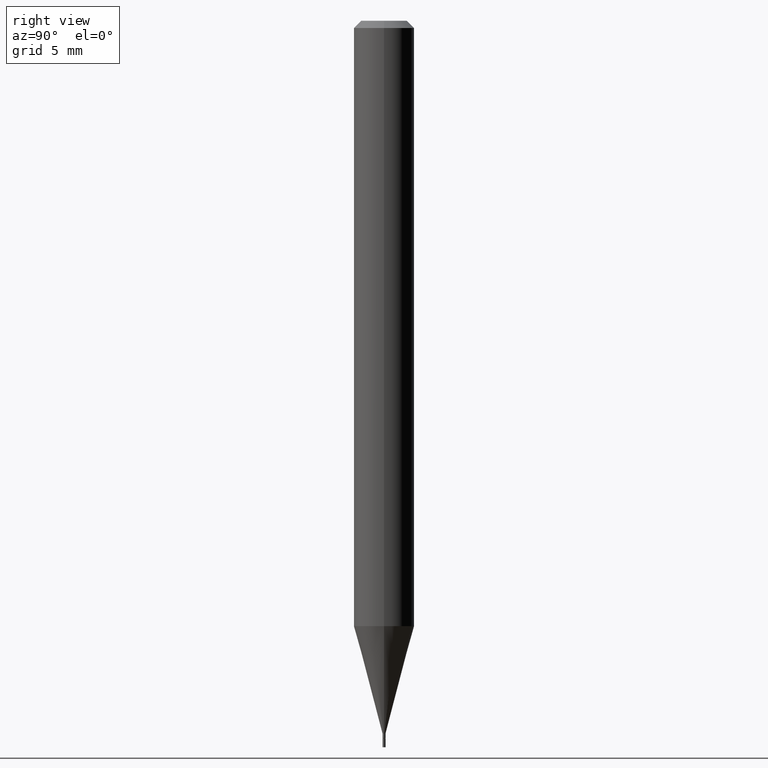
[diagram: clean part render]
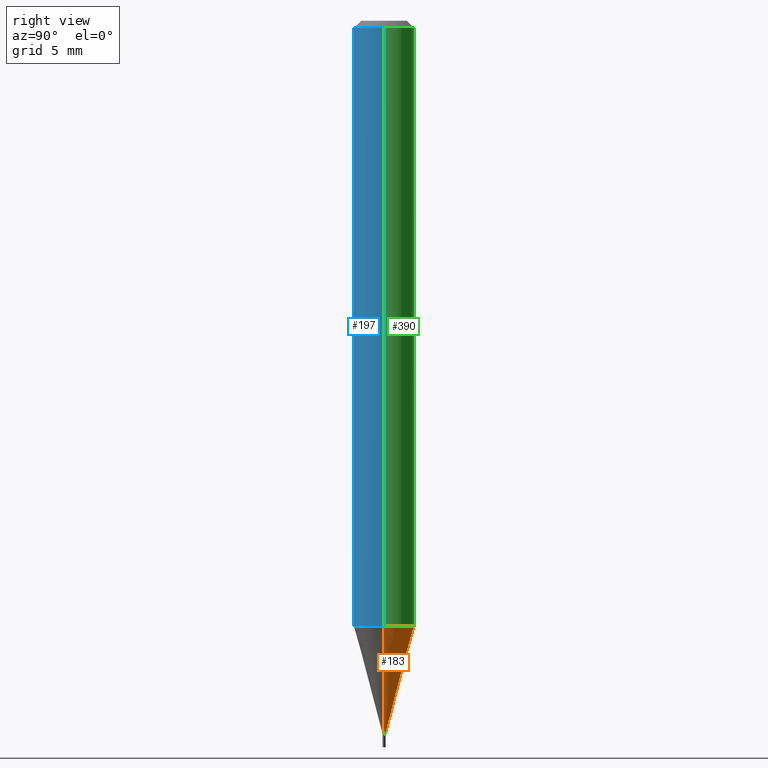
[diagram: same view with three faces highlighted in distinct colors, each labeled with its STEP entity id]
A machine part, right view with three faces highlighted in distinct colors.
Their STEP definitions:

[orange] entity #183 — the highlighted conical surface has half-angle 15 deg.
#30 = FACE_OUTER_BOUND ( 'NONE', #261, .T. ) ;
#50 = CIRCLE ( 'NONE', #101, 0.06250000000000000000 ) ;
#71 = CARTESIAN_POINT ( 'NONE',  ( 0.002999999999999921566, -5.160409418810168864E-15, -1.471999999999999975 ) ) ;
#78 = EDGE_CURVE ( 'NONE', #139, #265, #211, .T. ) ;
#87 = DIRECTION ( 'NONE',  ( -0.2588190451025213501, 5.211531920934551042E-15, 0.9659258262890682012 ) ) ;
#91 = DIRECTION ( 'NONE',  ( -2.445468806185136597E-29, 3.491481338843145583E-15, 1.000000000000000000 ) ) ;
#98 = CARTESIAN_POINT ( 'NONE',  ( 0.06250000000000000000, -4.800587745993150425E-15, -1.249942976949652174 ) ) ;
#99 = DIRECTION ( 'NONE',  ( 0.2588190451025213501, 1.565188264969621968E-15, 0.9659258262890682012 ) ) ;
#101 = AXIS2_PLACEMENT_3D ( 'NONE', #414, #91, #306 ) ;
#107 = EDGE_CURVE ( 'NONE', #278, #123, #200, .T. ) ;
#123 = VERTEX_POINT ( 'NONE', #98 ) ;
#138 = DIRECTION ( 'NONE',  ( 1.000000000000000000, -6.982962677686191769E-15, 0.000000000000000000 ) ) ;
#139 = VERTEX_POINT ( 'NONE', #386 ) ;
#152 = EDGE_CURVE ( 'NONE', #123, #265, #50, .T. ) ;
#165 = DIRECTION ( 'NONE',  ( -2.445468806185136597E-29, 3.491481338843145583E-15, 1.000000000000000000 ) ) ;
#177 = CARTESIAN_POINT ( 'NONE',  ( -0.06250000000000000000, -3.920063368787695350E-15, -1.249942976949652174 ) ) ;
#183 = ADVANCED_FACE ( 'NONE', ( #30 ), #437, .T. ) ;
#191 = AXIS2_PLACEMENT_3D ( 'NONE', #413, #300, #224 ) ;
#200 = LINE ( 'NONE', #421, #284 ) ;
#211 = LINE ( 'NONE', #288, #353 ) ;
#216 = CIRCLE ( 'NONE', #191, 0.002999999999999921566 ) ;
#224 = DIRECTION ( 'NONE',  ( 1.000000000000000000, -6.982962677686191769E-15, 0.000000000000000000 ) ) ;
#225 = ORIENTED_EDGE ( 'NONE', *, *, #107, .F. ) ;
#245 = ORIENTED_EDGE ( 'NONE', *, *, #359, .T. ) ;
#248 = AXIS2_PLACEMENT_3D ( 'NONE', #458, #165, #138 ) ;
#258 = ORIENTED_EDGE ( 'NONE', *, *, #78, .T. ) ;
#261 = EDGE_LOOP ( 'NONE', ( #245, #258, #316, #225 ) ) ;
#265 = VERTEX_POINT ( 'NONE', #177 ) ;
#278 = VERTEX_POINT ( 'NONE', #71 ) ;
#284 = VECTOR ( 'NONE', #99, 39.37007874015747433 ) ;
#288 = CARTESIAN_POINT ( 'NONE',  ( -0.002999999999999921566, -5.118144248704308586E-15, -1.471999999999999975 ) ) ;
#300 = DIRECTION ( 'NONE',  ( -2.445468806185136597E-29, 3.491481338843145583E-15, 1.000000000000000000 ) ) ;
#306 = DIRECTION ( 'NONE',  ( 1.000000000000000000, -6.982962677686270655E-15, 0.000000000000000000 ) ) ;
#316 = ORIENTED_EDGE ( 'NONE', *, *, #152, .F. ) ;
#353 = VECTOR ( 'NONE', #87, 39.37007874015747433 ) ;
#359 = EDGE_CURVE ( 'NONE', #278, #139, #216, .T. ) ;
#386 = CARTESIAN_POINT ( 'NONE',  ( -0.002999999999999921566, -4.519103808746002757E-15, -1.471999999999999975 ) ) ;
#413 = CARTESIAN_POINT ( 'NONE',  ( 3.599730082704520905E-29, -5.139460530777110821E-15, -1.471999999999999975 ) ) ;
#414 = CARTESIAN_POINT ( 'NONE',  ( 3.056696559640561437E-29, -4.364152578637758755E-15, -1.249942976949652174 ) ) ;
#421 = CARTESIAN_POINT ( 'NONE',  ( 0.002999999999999921566, -5.160409418810168864E-15, -1.471999999999999975 ) ) ;
#437 = CONICAL_SURFACE ( 'NONE', #248, 0.002999999999999921566, 0.2617993877991500740 ) ;
#458 = CARTESIAN_POINT ( 'NONE',  ( 3.599730082704520905E-29, -5.139460530777110821E-15, -1.471999999999999975 ) ) ;

[blue] entity #197 — the highlighted cylindrical surface (edge-blend (fillet) strip) has radius 1.5875 mm, axis along (-0, 0, 1).
#2 = ORIENTED_EDGE ( 'NONE', *, *, #252, .T. ) ;
#11 = ORIENTED_EDGE ( 'NONE', *, *, #141, .F. ) ;
#17 = CARTESIAN_POINT ( 'NONE',  ( 3.668203209277705088E-31, -5.237222008264718399E-17, -0.01499999999999999944 ) ) ;
#35 = AXIS2_PLACEMENT_3D ( 'NONE', #55, #377, #188 ) ;
#55 = CARTESIAN_POINT ( 'NONE',  ( 3.056696559640561437E-29, -4.364152578637758755E-15, -1.249942976949652174 ) ) ;
#60 = DIRECTION ( 'NONE',  ( 1.000000000000000000, -6.982962677686266711E-15, 4.876176775795935793E-29 ) ) ;
#68 = DIRECTION ( 'NONE',  ( -2.445468806185136597E-29, 3.491481338843145583E-15, 1.000000000000000000 ) ) ;
#76 = AXIS2_PLACEMENT_3D ( 'NONE', #17, #68, #347 ) ;
#86 = VERTEX_POINT ( 'NONE', #310 ) ;
#98 = CARTESIAN_POINT ( 'NONE',  ( 0.06250000000000000000, -4.800587745993150425E-15, -1.249942976949652174 ) ) ;
#111 = AXIS2_PLACEMENT_3D ( 'NONE', #303, #378, #60 ) ;
#123 = VERTEX_POINT ( 'NONE', #98 ) ;
#141 = EDGE_CURVE ( 'NONE', #400, #86, #299, .T. ) ;
#148 = ORIENTED_EDGE ( 'NONE', *, *, #397, .F. ) ;
#161 = CYLINDRICAL_SURFACE ( 'NONE', #111, 0.06250000000000000000 ) ;
#177 = CARTESIAN_POINT ( 'NONE',  ( -0.06250000000000000000, -3.920063368787695350E-15, -1.249942976949652174 ) ) ;
#188 = DIRECTION ( 'NONE',  ( 1.000000000000000000, -6.982962677686270655E-15, 0.000000000000000000 ) ) ;
#196 = LINE ( 'NONE', #262, #206 ) ;
#197 = ADVANCED_FACE ( 'NONE', ( #264 ), #161, .T. ) ;
#206 = VECTOR ( 'NONE', #406, 39.37007874015748143 ) ;
#208 = DIRECTION ( 'NONE',  ( -2.445468806185136877E-29, 3.491481338843145188E-15, 1.000000000000000000 ) ) ;
#252 = EDGE_CURVE ( 'NONE', #123, #86, #362, .T. ) ;
#262 = CARTESIAN_POINT ( 'NONE',  ( -0.06250000000000000000, 4.440892098500626162E-16, -3.074334431409316114E-30 ) ) ;
#264 = FACE_OUTER_BOUND ( 'NONE', #374, .T. ) ;
#265 = VERTEX_POINT ( 'NONE', #177 ) ;
#291 = VECTOR ( 'NONE', #208, 39.37007874015748143 ) ;
#299 = CIRCLE ( 'NONE', #76, 0.06250000000000000000 ) ;
#303 = CARTESIAN_POINT ( 'NONE',  ( 0.000000000000000000, 0.000000000000000000, 0.000000000000000000 ) ) ;
#308 = CARTESIAN_POINT ( 'NONE',  ( -0.06250000000000000000, -1.764173189510140301E-15, -0.01499999999999999944 ) ) ;
#310 = CARTESIAN_POINT ( 'NONE',  ( 0.06250000000000000000, -4.888073874380388472E-16, -0.01499999999999999944 ) ) ;
#333 = EDGE_CURVE ( 'NONE', #265, #123, #412, .T. ) ;
#344 = ORIENTED_EDGE ( 'NONE', *, *, #333, .T. ) ;
#347 = DIRECTION ( 'NONE',  ( 1.000000000000000000, -6.982962677686266711E-15, 0.000000000000000000 ) ) ;
#362 = LINE ( 'NONE', #431, #291 ) ;
#374 = EDGE_LOOP ( 'NONE', ( #148, #344, #2, #11 ) ) ;
#377 = DIRECTION ( 'NONE',  ( -2.445468806185136597E-29, 3.491481338843145583E-15, 1.000000000000000000 ) ) ;
#378 = DIRECTION ( 'NONE',  ( -2.445468806185136597E-29, 3.491481338843145583E-15, 1.000000000000000000 ) ) ;
#397 = EDGE_CURVE ( 'NONE', #265, #400, #196, .T. ) ;
#400 = VERTEX_POINT ( 'NONE', #308 ) ;
#406 = DIRECTION ( 'NONE',  ( -2.445468806185136877E-29, 3.491481338843145188E-15, 1.000000000000000000 ) ) ;
#412 = CIRCLE ( 'NONE', #35, 0.06250000000000000000 ) ;
#431 = CARTESIAN_POINT ( 'NONE',  ( 0.06250000000000000000, -4.364351673553916694E-16, 3.047610484872459871E-30 ) ) ;

[green] entity #390 — the highlighted cylindrical surface (edge-blend (fillet) strip) has radius 1.5875 mm, axis along (-0, 0, 1).
#6 = CARTESIAN_POINT ( 'NONE',  ( 0.000000000000000000, 0.000000000000000000, 0.000000000000000000 ) ) ;
#28 = EDGE_LOOP ( 'NONE', ( #203, #275, #435, #120 ) ) ;
#47 = DIRECTION ( 'NONE',  ( -2.445468806185136597E-29, 3.491481338843145583E-15, 1.000000000000000000 ) ) ;
#50 = CIRCLE ( 'NONE', #101, 0.06250000000000000000 ) ;
#86 = VERTEX_POINT ( 'NONE', #310 ) ;
#91 = DIRECTION ( 'NONE',  ( -2.445468806185136597E-29, 3.491481338843145583E-15, 1.000000000000000000 ) ) ;
#98 = CARTESIAN_POINT ( 'NONE',  ( 0.06250000000000000000, -4.800587745993150425E-15, -1.249942976949652174 ) ) ;
#101 = AXIS2_PLACEMENT_3D ( 'NONE', #414, #91, #306 ) ;
#114 = EDGE_CURVE ( 'NONE', #86, #400, #218, .T. ) ;
#120 = ORIENTED_EDGE ( 'NONE', *, *, #252, .F. ) ;
#123 = VERTEX_POINT ( 'NONE', #98 ) ;
#149 = AXIS2_PLACEMENT_3D ( 'NONE', #155, #325, #171 ) ;
#152 = EDGE_CURVE ( 'NONE', #123, #265, #50, .T. ) ;
#155 = CARTESIAN_POINT ( 'NONE',  ( 3.668203209277705088E-31, -5.237222008264718399E-17, -0.01499999999999999944 ) ) ;
#171 = DIRECTION ( 'NONE',  ( 1.000000000000000000, -6.982962677686266711E-15, 0.000000000000000000 ) ) ;
#177 = CARTESIAN_POINT ( 'NONE',  ( -0.06250000000000000000, -3.920063368787695350E-15, -1.249942976949652174 ) ) ;
#196 = LINE ( 'NONE', #262, #206 ) ;
#203 = ORIENTED_EDGE ( 'NONE', *, *, #152, .T. ) ;
#206 = VECTOR ( 'NONE', #406, 39.37007874015748143 ) ;
#208 = DIRECTION ( 'NONE',  ( -2.445468806185136877E-29, 3.491481338843145188E-15, 1.000000000000000000 ) ) ;
#218 = CIRCLE ( 'NONE', #149, 0.06250000000000000000 ) ;
#238 = DIRECTION ( 'NONE',  ( 1.000000000000000000, -6.982962677686266711E-15, 4.876176775795935793E-29 ) ) ;
#252 = EDGE_CURVE ( 'NONE', #123, #86, #362, .T. ) ;
#262 = CARTESIAN_POINT ( 'NONE',  ( -0.06250000000000000000, 4.440892098500626162E-16, -3.074334431409316114E-30 ) ) ;
#265 = VERTEX_POINT ( 'NONE', #177 ) ;
#275 = ORIENTED_EDGE ( 'NONE', *, *, #397, .T. ) ;
#291 = VECTOR ( 'NONE', #208, 39.37007874015748143 ) ;
#306 = DIRECTION ( 'NONE',  ( 1.000000000000000000, -6.982962677686270655E-15, 0.000000000000000000 ) ) ;
#308 = CARTESIAN_POINT ( 'NONE',  ( -0.06250000000000000000, -1.764173189510140301E-15, -0.01499999999999999944 ) ) ;
#310 = CARTESIAN_POINT ( 'NONE',  ( 0.06250000000000000000, -4.888073874380388472E-16, -0.01499999999999999944 ) ) ;
#325 = DIRECTION ( 'NONE',  ( -2.445468806185136597E-29, 3.491481338843145583E-15, 1.000000000000000000 ) ) ;
#332 = CYLINDRICAL_SURFACE ( 'NONE', #466, 0.06250000000000000000 ) ;
#337 = FACE_OUTER_BOUND ( 'NONE', #28, .T. ) ;
#362 = LINE ( 'NONE', #431, #291 ) ;
#390 = ADVANCED_FACE ( 'NONE', ( #337 ), #332, .T. ) ;
#397 = EDGE_CURVE ( 'NONE', #265, #400, #196, .T. ) ;
#400 = VERTEX_POINT ( 'NONE', #308 ) ;
#406 = DIRECTION ( 'NONE',  ( -2.445468806185136877E-29, 3.491481338843145188E-15, 1.000000000000000000 ) ) ;
#414 = CARTESIAN_POINT ( 'NONE',  ( 3.056696559640561437E-29, -4.364152578637758755E-15, -1.249942976949652174 ) ) ;
#431 = CARTESIAN_POINT ( 'NONE',  ( 0.06250000000000000000, -4.364351673553916694E-16, 3.047610484872459871E-30 ) ) ;
#435 = ORIENTED_EDGE ( 'NONE', *, *, #114, .F. ) ;
#466 = AXIS2_PLACEMENT_3D ( 'NONE', #6, #47, #238 ) ;